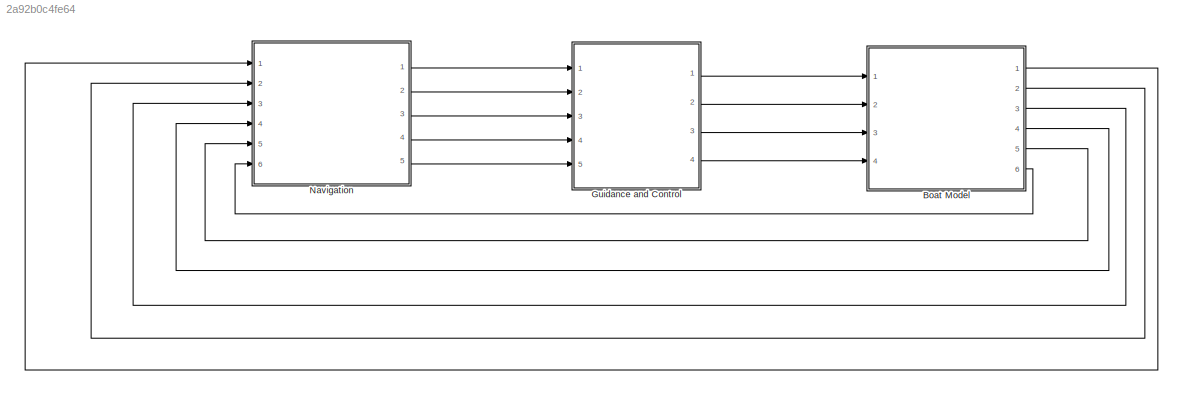
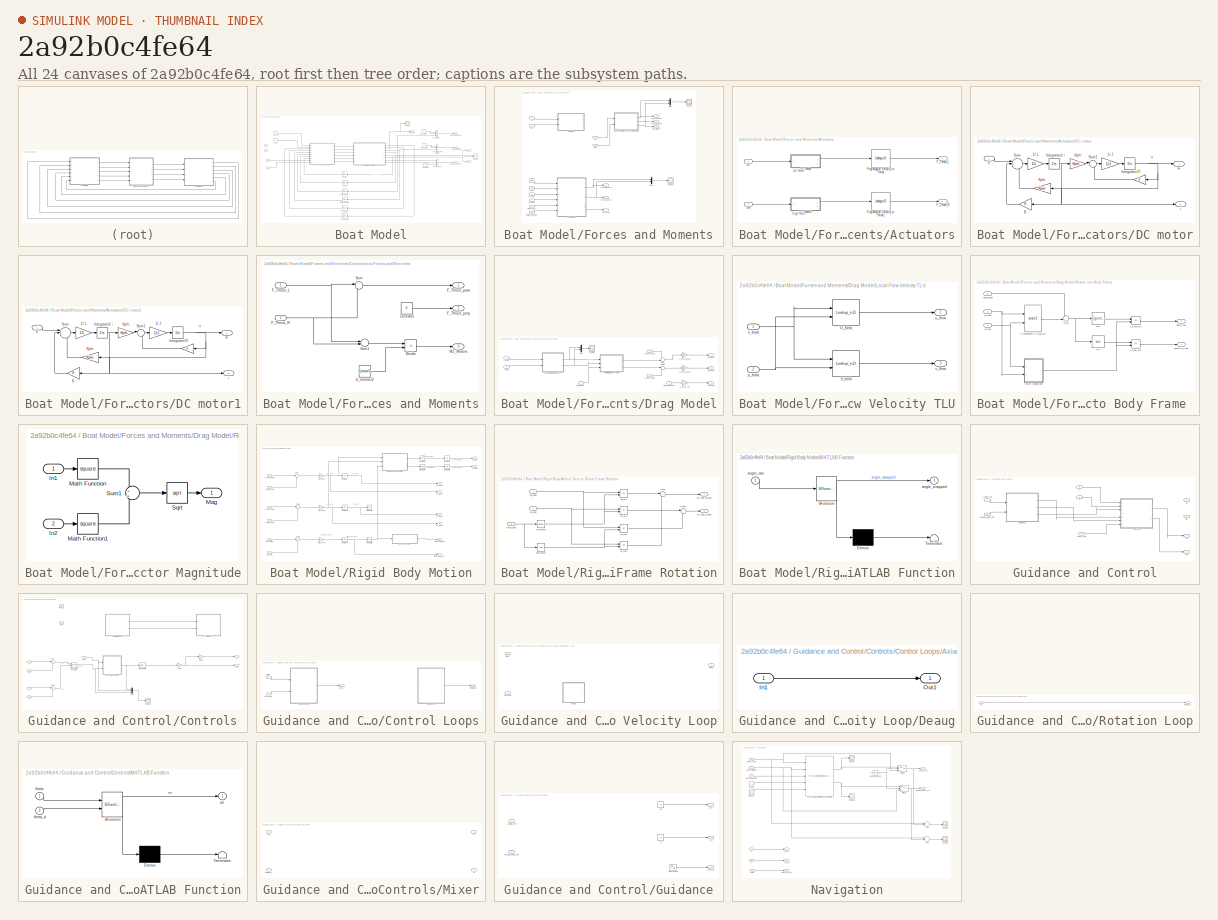
[diagram: thumbnail index - all 24 canvases of the model, root first then tree order]
MODEL slx_2a92b0c4fe64
KIND model
CONFIG AbsTol = auto
CONFIG FixedStep = auto
CONFIG MaxStep = auto
CONFIG MinStep = auto
CONFIG RelTol = 1e-3
CONFIG SampleTimeConstraint = Unconstrained
CONFIG Solver = ode45
CONFIG SolverMode = Auto
CONFIG SolverName = ode45
CONFIG StartTime = 0.0
CONFIG StopTime = 50
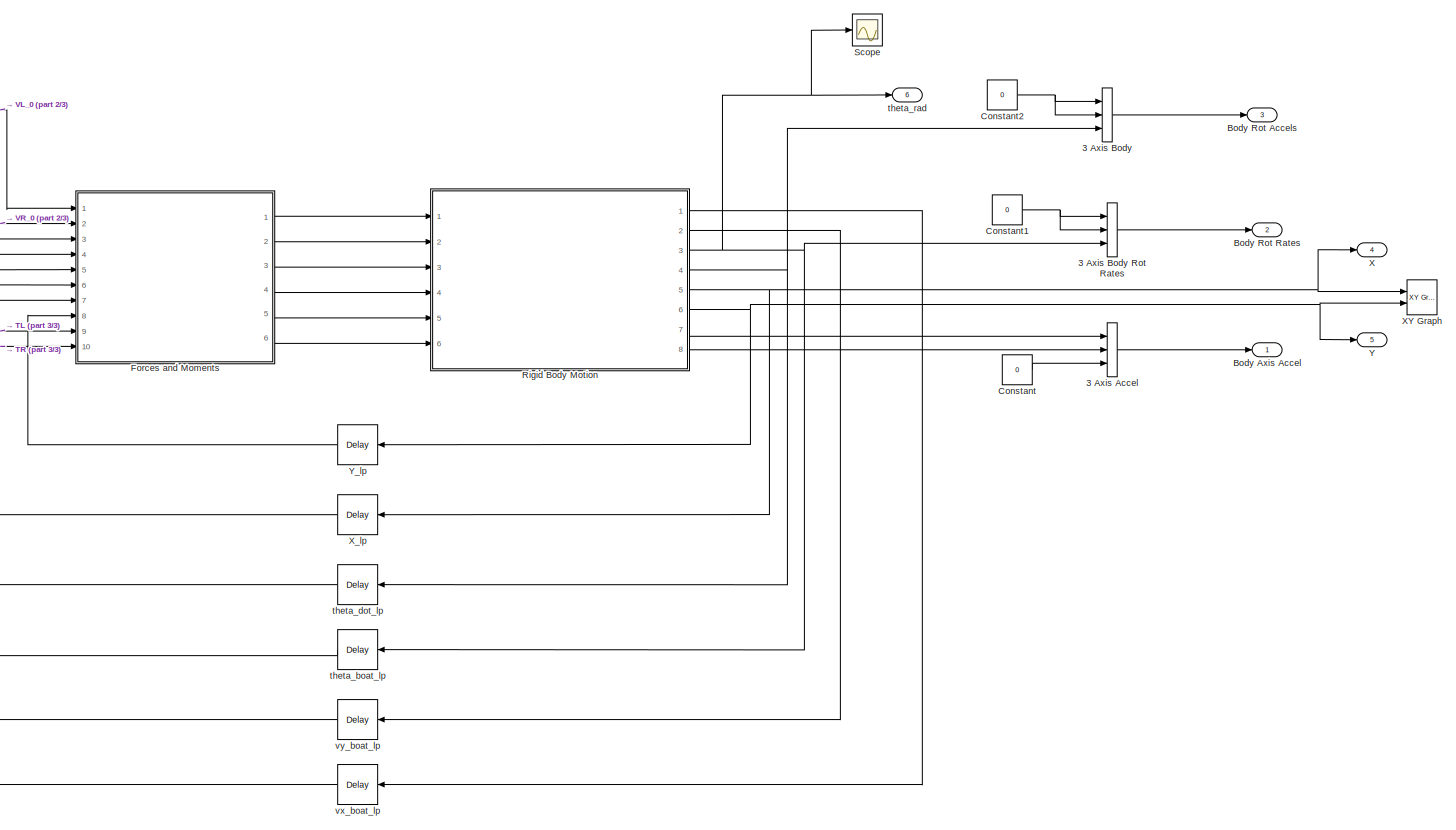
[diagram: Boat Model - part 1/3, most of the canvas]
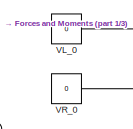
[diagram: Boat Model - part 2/3, top left region]
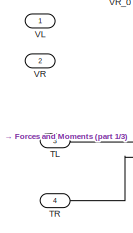
[diagram: Boat Model - part 3/3, middle left region]
BLOCK [SubSystem] Boat Model
  Ports = [4, 6]
  RequestExecContextInheritance = off
BLOCK [Concatenate] Boat Model/3 Axis Accel
  NumInputs = 3
  Ports = [3, 1]
BLOCK [Concatenate] Boat Model/3 Axis Body
  NumInputs = 3
  Ports = [3, 1]
BLOCK [Concatenate] Boat Model/3 Axis Body Rot Rates
  NumInputs = 3
  Ports = [3, 1]
BLOCK [Outport] Boat Model/Body Axis Accel
  IconDisplay = Port number
BLOCK [Outport] Boat Model/Body Rot Accels
  IconDisplay = Port number
  Port = 3
BLOCK [Outport] Boat Model/Body Rot Rates
  IconDisplay = Port number
  Port = 2
BLOCK [Constant] Boat Model/Constant
  Value = 0
BLOCK [Constant] Boat Model/Constant1
  Value = 0
BLOCK [Constant] Boat Model/Constant2
  Value = 0
BLOCK [SubSystem] Boat Model/Forces and Moments
  Ports = [10, 6]
  RequestExecContextInheritance = off
BLOCK [SubSystem] Boat Model/Forces and Moments/Actuators
  Ports = [2, 2]
  RequestExecContextInheritance = off
BLOCK [SubSystem] Boat Model/Forces and Moments/Actuators/DC motor
  Ports = [1, 2]
  RequestExecContextInheritance = off
BLOCK [Gain] Boat Model/Forces and Moments/Actuators/DC motor/1// J
  Gain = 1/J
  OutDataTypeStr = Inherit: Inherit via internal rule
  ParamDataTypeStr = Inherit: Inherit via internal rule
  SaturateOnIntegerOverflow = off
BLOCK [Gain] Boat Model/Forces and Moments/Actuators/DC motor/1// L
  Gain = 1/L
  OutDataTypeStr = Inherit: Inherit via internal rule
  ParamDataTypeStr = Inherit: Inherit via internal rule
  SaturateOnIntegerOverflow = off
BLOCK [Integrator] Boat Model/Forces and Moments/Actuators/DC motor/Integrator1
  Ports = [1, 1]
BLOCK [Integrator] Boat Model/Forces and Moments/Actuators/DC motor/Integrator2
  Ports = [1, 1]
BLOCK [Gain] Boat Model/Forces and Moments/Actuators/DC motor/Kphi
  Gain = Kphi
  OutDataTypeStr = Inherit: Inherit via internal rule
  ParamDataTypeStr = Inherit: Inherit via internal rule
  SaturateOnIntegerOverflow = off
BLOCK [Gain] Boat Model/Forces and Moments/Actuators/DC motor/Kphi 
  Gain = Kphi
  OutDataTypeStr = Inherit: Inherit via internal rule
  ParamDataTypeStr = Inherit: Inherit via internal rule
  SaturateOnIntegerOverflow = off
BLOCK [Gain] Boat Model/Forces and Moments/Actuators/DC motor/R
  Gain = R
  OutDataTypeStr = Inherit: Inherit via internal rule
  ParamDataTypeStr = Inherit: Inherit via internal rule
  SaturateOnIntegerOverflow = off
BLOCK [Sum] Boat Model/Forces and Moments/Actuators/DC motor/Sum
  IconShape = round
  InputSameDT = off
  Inputs = |+--
  OutDataTypeStr = Inherit: Inherit via internal rule
  Ports = [3, 1]
  SaturateOnIntegerOverflow = off
BLOCK [Sum] Boat Model/Forces and Moments/Actuators/DC motor/Sum1
  IconShape = round
  InputSameDT = off
  Inputs = |+-
  OutDataTypeStr = Inherit: Inherit via internal rule
  Ports = [2, 1]
  SaturateOnIntegerOverflow = off
BLOCK [Inport] Boat Model/Forces and Moments/Actuators/DC motor/V
  IconDisplay = Port number
BLOCK [Gain] Boat Model/Forces and Moments/Actuators/DC motor/b
  Gain = b
  OutDataTypeStr = Inherit: Inherit via internal rule
  ParamDataTypeStr = Inherit: Inherit via internal rule
  SaturateOnIntegerOverflow = off
BLOCK [Outport] Boat Model/Forces and Moments/Actuators/DC motor/i
  IconDisplay = Port number
  Port = 2
BLOCK [Outport] Boat Model/Forces and Moments/Actuators/DC motor/w
  IconDisplay = Port number
BLOCK [SubSystem] Boat Model/Forces and Moments/Actuators/DC motor1
  Ports = [1, 2]
  RequestExecContextInheritance = off
BLOCK [Gain] Boat Model/Forces and Moments/Actuators/DC motor1/1// J
  Gain = 1/J
  OutDataTypeStr = Inherit: Inherit via internal rule
  ParamDataTypeStr = Inherit: Inherit via internal rule
  SaturateOnIntegerOverflow = off
BLOCK [Gain] Boat Model/Forces and Moments/Actuators/DC motor1/1// L
  Gain = 1/L
  OutDataTypeStr = Inherit: Inherit via internal rule
  ParamDataTypeStr = Inherit: Inherit via internal rule
  SaturateOnIntegerOverflow = off
BLOCK [Integrator] Boat Model/Forces and Moments/Actuators/DC motor1/Integrator1
  Ports = [1, 1]
BLOCK [Integrator] Boat Model/Forces and Moments/Actuators/DC motor1/Integrator2
  Ports = [1, 1]
BLOCK [Gain] Boat Model/Forces and Moments/Actuators/DC motor1/Kphi
  Gain = Kphi
  OutDataTypeStr = Inherit: Inherit via internal rule
  ParamDataTypeStr = Inherit: Inherit via internal rule
  SaturateOnIntegerOverflow = off
BLOCK [Gain] Boat Model/Forces and Moments/Actuators/DC motor1/Kphi 
  Gain = Kphi
  OutDataTypeStr = Inherit: Inherit via internal rule
  ParamDataTypeStr = Inherit: Inherit via internal rule
  SaturateOnIntegerOverflow = off
BLOCK [Gain] Boat Model/Forces and Moments/Actuators/DC motor1/R
  Gain = R
  OutDataTypeStr = Inherit: Inherit via internal rule
  ParamDataTypeStr = Inherit: Inherit via internal rule
  SaturateOnIntegerOverflow = off
BLOCK [Sum] Boat Model/Forces and Moments/Actuators/DC motor1/Sum
  IconShape = round
  InputSameDT = off
  Inputs = |+--
  OutDataTypeStr = Inherit: Inherit via internal rule
  Ports = [3, 1]
  SaturateOnIntegerOverflow = off
BLOCK [Sum] Boat Model/Forces and Moments/Actuators/DC motor1/Sum1
  IconShape = round
  InputSameDT = off
  Inputs = |+-
  OutDataTypeStr = Inherit: Inherit via internal rule
  Ports = [2, 1]
  SaturateOnIntegerOverflow = off
BLOCK [Inport] Boat Model/Forces and Moments/Actuators/DC motor1/V
  IconDisplay = Port number
BLOCK [Gain] Boat Model/Forces and Moments/Actuators/DC motor1/b
  Gain = b
  OutDataTypeStr = Inherit: Inherit via internal rule
  ParamDataTypeStr = Inherit: Inherit via internal rule
  SaturateOnIntegerOverflow = off
BLOCK [Outport] Boat Model/Forces and Moments/Actuators/DC motor1/i
  IconDisplay = Port number
  Port = 2
BLOCK [Outport] Boat Model/Forces and Moments/Actuators/DC motor1/w
  IconDisplay = Port number
BLOCK [Outport] Boat Model/Forces and Moments/Actuators/F_Thrust_L
  IconDisplay = Port number
BLOCK [Outport] Boat Model/Forces and Moments/Actuators/F_Thrust_R
  IconDisplay = Port number
  Port = 2
BLOCK [Lookup_n-D] Boat Model/Forces and Moments/Actuators/Prop Angular Velocity to Thrust
  BreakpointsForDimension1 = [-5:5]
  InternalRulePriority = Speed
  NumberOfTableDimensions = 1
  Ports = [1, 1]
  RndMeth = Simplest
  Table = tanh([-5:5])
BLOCK [Lookup_n-D] Boat Model/Forces and Moments/Actuators/Prop Angular Velocity to Thrust1
  BreakpointsForDimension1 = [-5:5]
  InternalRulePriority = Speed
  NumberOfTableDimensions = 1
  Ports = [1, 1]
  RndMeth = Simplest
  Table = tanh([-5:5])
BLOCK [Inport] Boat Model/Forces and Moments/Actuators/VL
  IconDisplay = Port number
BLOCK [Inport] Boat Model/Forces and Moments/Actuators/VR
  IconDisplay = Port number
  Port = 2
BLOCK [SubSystem] Boat Model/Forces and Moments/Conversion to Forces and Moments
  Ports = [2, 3]
  RequestExecContextInheritance = off
BLOCK [Constant] Boat Model/Forces and Moments/Conversion to Forces and Moments/Constant
  Value = 0
BLOCK [Product] Boat Model/Forces and Moments/Conversion to Forces and Moments/Divide
  InputSameDT = off
  Inputs = */
  OutDataTypeStr = Inherit: Inherit via internal rule
  Ports = [2, 1]
  RndMeth = Floor
  SaturateOnIntegerOverflow = off
BLOCK [Inport] Boat Model/Forces and Moments/Conversion to Forces and Moments/F_Thrust_L
  IconDisplay = Port number
BLOCK [Inport] Boat Model/Forces and Moments/Conversion to Forces and Moments/F_Thrust_R
  IconDisplay = Port number
  Port = 2
BLOCK [Outport] Boat Model/Forces and Moments/Conversion to Forces and Moments/F_Thrust_para
  IconDisplay = Port number
BLOCK [Outport] Boat Model/Forces and Moments/Conversion to Forces and Moments/F_Thrust_perp
  IconDisplay = Port number
  Port = 2
BLOCK [Outport] Boat Model/Forces and Moments/Conversion to Forces and Moments/Mz_Motors
  IconDisplay = Port number
  Port = 3
BLOCK [Sum] Boat Model/Forces and Moments/Conversion to Forces and Moments/Sum
  IconShape = round
  InputSameDT = off
  Inputs = |++
  OutDataTypeStr = Inherit: Inherit via internal rule
  Ports = [2, 1]
  SaturateOnIntegerOverflow = off
BLOCK [Sum] Boat Model/Forces and Moments/Conversion to Forces and Moments/Sum1
  IconShape = round
  InputSameDT = off
  Inputs = +-|
  OutDataTypeStr = Inherit: Inherit via internal rule
  Ports = [2, 1]
  SaturateOnIntegerOverflow = off
BLOCK [Constant] Boat Model/Forces and Moments/Conversion to Forces and Moments/d_motors//2
  Value = d_motors/2
BLOCK [SubSystem] Boat Model/Forces and Moments/Drag Model
  Ports = [6, 3]
  RequestExecContextInheritance = off
BLOCK [Outport] Boat Model/Forces and Moments/Drag Model/Fd_para
  IconDisplay = Port number
BLOCK [Outport] Boat Model/Forces and Moments/Drag Model/Fd_perp
  IconDisplay = Port number
  Port = 2
BLOCK [SubSystem] Boat Model/Forces and Moments/Drag Model/Local Flow Velocity TLU
  Ports = [2, 2]
  RequestExecContextInheritance = off
BLOCK [Lookup_n-D] Boat Model/Forces and Moments/Drag Model/Local Flow Velocity TLU/U_field
  BeginIndexSearchUsingPreviousIndexResult = on
  BreakpointsForDimension1 = xs
  BreakpointsForDimension2 = ys
  ExtrapMethod = Clip
  InternalRulePriority = Speed
  Ports = [2, 1]
  RndMeth = Simplest
  Table = U_field'
  UseLastTableValue = on
BLOCK [Lookup_n-D] Boat Model/Forces and Moments/Drag Model/Local Flow Velocity TLU/V_field
  BeginIndexSearchUsingPreviousIndexResult = on
  BreakpointsForDimension1 = xs
  BreakpointsForDimension2 = ys
  ExtrapMethod = Clip
  InternalRulePriority = Speed
  Ports = [2, 1]
  RndMeth = Simplest
  Table = V_field_load'
  UseLastTableValue = on
BLOCK [Outport] Boat Model/Forces and Moments/Drag Model/Local Flow Velocity TLU/u_flow
  IconDisplay = Port number
BLOCK [Outport] Boat Model/Forces and Moments/Drag Model/Local Flow Velocity TLU/v_flow
  IconDisplay = Port number
  Port = 2
BLOCK [Inport] Boat Model/Forces and Moments/Drag Model/Local Flow Velocity TLU/x_boat
  IconDisplay = Port number
BLOCK [Inport] Boat Model/Forces and Moments/Drag Model/Local Flow Velocity TLU/y_boat
  IconDisplay = Port number
  Port = 2
BLOCK [Mux] Boat Model/Forces and Moments/Drag Model/Mux
  DisplayOption = bar
  Inputs = 2
  Ports = [2, 1]
BLOCK [Outport] Boat Model/Forces and Moments/Drag Model/Mz_drag
  IconDisplay = Port number
  Port = 3
BLOCK [SubSystem] Boat Model/Forces and Moments/Drag Model/Rotate into Body Frame 
  Ports = [3, 2]
  RequestExecContextInheritance = off
BLOCK [Sum] Boat Model/Forces and Moments/Drag Model/Rotate into Body Frame /Sum
  IconShape = round
  InputSameDT = off
  Inputs = -+|
  OutDataTypeStr = Inherit: Inherit via internal rule
  Ports = [2, 1]
  SaturateOnIntegerOverflow = off
BLOCK [Trigonometry] Boat Model/Forces and Moments/Drag Model/Rotate into Body Frame /Trigonometric Function
  Operator = atan2
  Ports = [2, 1]
BLOCK [SubSystem] Boat Model/Forces and Moments/Drag Model/Rotate into Body Frame /Vector Magnitude
  Ports = [2, 1]
  RequestExecContextInheritance = off
BLOCK [Inport] Boat Model/Forces and Moments/Drag Model/Rotate into Body Frame /Vector Magnitude/In1
  IconDisplay = Port number
BLOCK [Inport] Boat Model/Forces and Moments/Drag Model/Rotate into Body Frame /Vector Magnitude/In2
  IconDisplay = Port number
  Port = 2
BLOCK [Outport] Boat Model/Forces and Moments/Drag Model/Rotate into Body Frame /Vector Magnitude/Mag
  IconDisplay = Port number
BLOCK [Math] Boat Model/Forces and Moments/Drag Model/Rotate into Body Frame /Vector Magnitude/Math Function
  Operator = square
  Ports = [1, 1]
BLOCK [Math] Boat Model/Forces and Moments/Drag Model/Rotate into Body Frame /Vector Magnitude/Math Function1
  Operator = square
  Ports = [1, 1]
BLOCK [Sqrt] Boat Model/Forces and Moments/Drag Model/Rotate into Body Frame /Vector Magnitude/Sqrt
BLOCK [Sum] Boat Model/Forces and Moments/Drag Model/Rotate into Body Frame /Vector Magnitude/Sum1
  IconShape = round
  InputSameDT = off
  OutDataTypeStr = Inherit: Inherit via internal rule
  Ports = [2, 1]
  SaturateOnIntegerOverflow = off
BLOCK [Trigonometry] Boat Model/Forces and Moments/Drag Model/Rotate into Body Frame /cos 
  Ports = [1, 1]
BLOCK [Outport] Boat Model/Forces and Moments/Drag Model/Rotate into Body Frame /parallel_flow
  IconDisplay = Port number
BLOCK [Outport] Boat Model/Forces and Moments/Drag Model/Rotate into Body Frame /perp_flow
  IconDisplay = Port number
  Port = 2
BLOCK [Trigonometry] Boat Model/Forces and Moments/Drag Model/Rotate into Body Frame /sin
  Operator = cos
  Ports = [1, 1]
BLOCK [Inport] Boat Model/Forces and Moments/Drag Model/Rotate into Body Frame /theta_boat
  IconDisplay = Port number
  Port = 3
BLOCK [Inport] Boat Model/Forces and Moments/Drag Model/Rotate into Body Frame /u_flow
  IconDisplay = Port number
BLOCK [Inport] Boat Model/Forces and Moments/Drag Model/Rotate into Body Frame /v_flow
  IconDisplay = Port number
  Port = 2
BLOCK [Product] Boat Model/Forces and Moments/Drag Model/Rotate into Body Frame /v_flow_cos
  InputSameDT = off
  Inputs = **
  OutDataTypeStr = Inherit: Inherit via internal rule
  Ports = [2, 1]
  RndMeth = Floor
  SaturateOnIntegerOverflow = off
BLOCK [Product] Boat Model/Forces and Moments/Drag Model/Rotate into Body Frame /v_flow_sin
  InputSameDT = off
  Inputs = **
  OutDataTypeStr = Inherit: Inherit via internal rule
  Ports = [2, 1]
  RndMeth = Floor
  SaturateOnIntegerOverflow = off
BLOCK [Scope] Boat Model/Forces and Moments/Drag Model/Scope
  Floating = off
  NumInputPorts = 1
  Ports = [1]
  SaveName = ScopeData7
BLOCK [Sum] Boat Model/Forces and Moments/Drag Model/Sum
  IconShape = round
  InputSameDT = off
  Inputs = +-|
  OutDataTypeStr = Inherit: Inherit via internal rule
  Ports = [2, 1]
  SaturateOnIntegerOverflow = off
BLOCK [Sum] Boat Model/Forces and Moments/Drag Model/Sum1
  IconShape = round
  InputSameDT = off
  Inputs = |-+
  OutDataTypeStr = Inherit: Inherit via internal rule
  Ports = [2, 1]
  SaturateOnIntegerOverflow = off
BLOCK [Gain] Boat Model/Forces and Moments/Drag Model/k_drag_para
  Gain = k_drag_para
  OutDataTypeStr = Inherit: Inherit via internal rule
  ParamDataTypeStr = Inherit: Inherit via internal rule
  SaturateOnIntegerOverflow = off
BLOCK [Gain] Boat Model/Forces and Moments/Drag Model/k_drag_perp
  Gain = k_drag_perp
  OutDataTypeStr = Inherit: Inherit via internal rule
  ParamDataTypeStr = Inherit: Inherit via internal rule
  SaturateOnIntegerOverflow = off
BLOCK [Gain] Boat Model/Forces and Moments/Drag Model/k_drag_rot
  Gain = 1*k_drag_rot
  OutDataTypeStr = Inherit: Inherit via internal rule
  ParamDataTypeStr = Inherit: Inherit via internal rule
  SaturateOnIntegerOverflow = off
BLOCK [Inport] Boat Model/Forces and Moments/Drag Model/theta_boat
  IconDisplay = Port number
  Port = 5
BLOCK [Inport] Boat Model/Forces and Moments/Drag Model/theta_dot_boat
  IconDisplay = Port number
  Port = 6
BLOCK [Inport] Boat Model/Forces and Moments/Drag Model/v_para_boat
  IconDisplay = Port number
  Port = 3
BLOCK [Inport] Boat Model/Forces and Moments/Drag Model/v_perp_boat
  IconDisplay = Port number
  Port = 4
BLOCK [Inport] Boat Model/Forces and Moments/Drag Model/x_boat
  IconDisplay = Port number
BLOCK [Inport] Boat Model/Forces and Moments/Drag Model/y_boat
  IconDisplay = Port number
  Port = 2
BLOCK [Outport] Boat Model/Forces and Moments/F_drag_para
  IconDisplay = Port number
  Port = 4
BLOCK [Outport] Boat Model/Forces and Moments/F_drag_perp
  IconDisplay = Port number
  Port = 5
BLOCK [Outport] Boat Model/Forces and Moments/F_thrust_para
  IconDisplay = Port number
BLOCK [Outport] Boat Model/Forces and Moments/F_thrust_perp
  IconDisplay = Port number
  Port = 2
BLOCK [Mux] Boat Model/Forces and Moments/Mux
  DisplayOption = bar
  Inputs = 2
  Ports = [2, 1]
BLOCK [Mux] Boat Model/Forces and Moments/Mux1
  DisplayOption = bar
  Inputs = 2
  Ports = [2, 1]
BLOCK [Outport] Boat Model/Forces and Moments/Mz_drag
  IconDisplay = Port number
  Port = 6
BLOCK [Outport] Boat Model/Forces and Moments/Mz_motors
  IconDisplay = Port number
  Port = 3
BLOCK [Scope] Boat Model/Forces and Moments/Scope
  Floating = off
  NumInputPorts = 1
  Ports = [1]
  SaveName = ScopeData4
BLOCK [Scope] Boat Model/Forces and Moments/Scope1
  Floating = off
  NumInputPorts = 1
  Ports = [1]
  SaveName = ScopeData6
BLOCK [Inport] Boat Model/Forces and Moments/TL
  IconDisplay = Port number
  Port = 9
BLOCK [Inport] Boat Model/Forces and Moments/TR
  IconDisplay = Port number
  Port = 10
BLOCK [Inport] Boat Model/Forces and Moments/VL
  IconDisplay = Port number
BLOCK [Inport] Boat Model/Forces and Moments/VR
  IconDisplay = Port number
  Port = 2
BLOCK [Inport] Boat Model/Forces and Moments/X_boat
  IconDisplay = Port number
  Port = 7
BLOCK [Inport] Boat Model/Forces and Moments/Y_boat
  IconDisplay = Port number
  Port = 8
BLOCK [Inport] Boat Model/Forces and Moments/theta_boat
  IconDisplay = Port number
  Port = 5
BLOCK [Inport] Boat Model/Forces and Moments/theta_dot_boat
  IconDisplay = Port number
  Port = 6
BLOCK [Inport] Boat Model/Forces and Moments/vx_boat
  IconDisplay = Port number
  Port = 3
BLOCK [Inport] Boat Model/Forces and Moments/vy_boat
  IconDisplay = Port number
  Port = 4
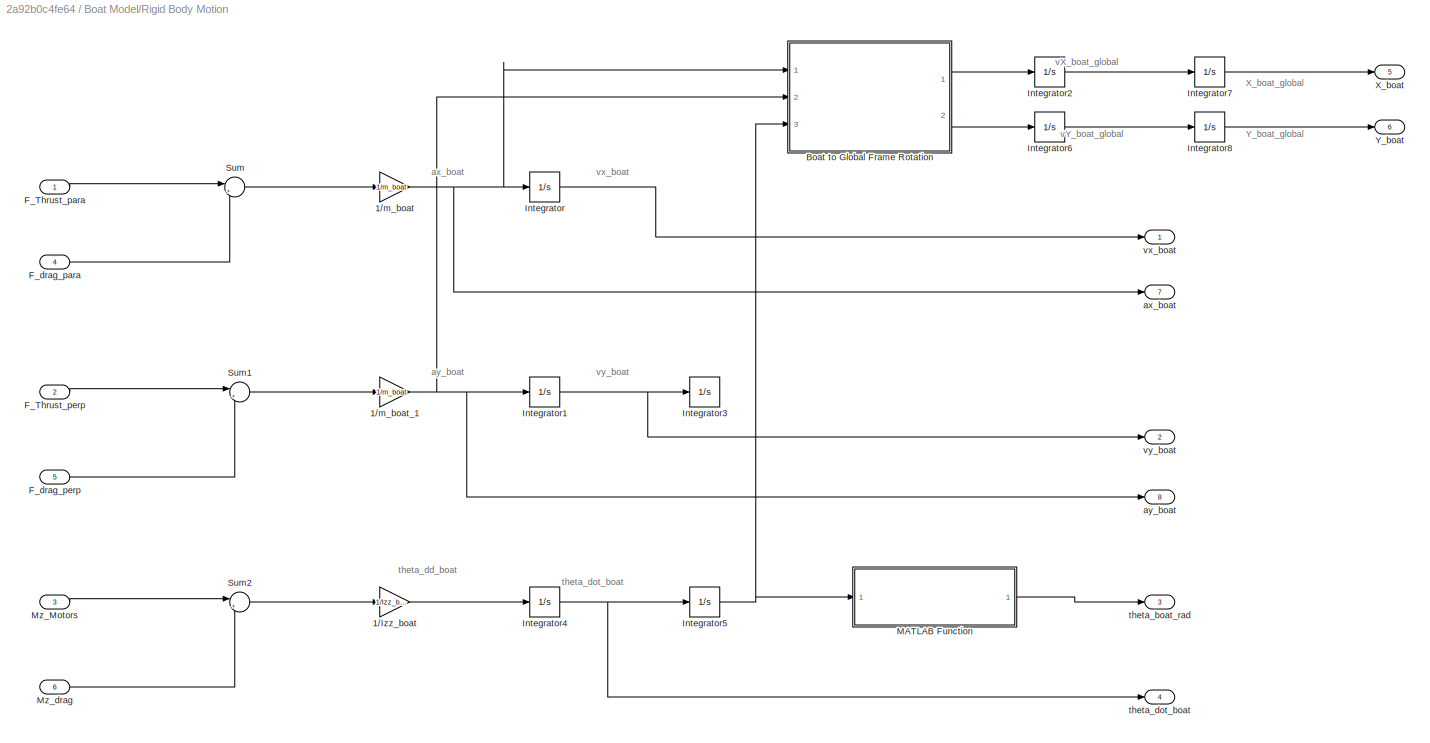
BLOCK [SubSystem] Boat Model/Rigid Body Motion
  Ports = [6, 8]
  RequestExecContextInheritance = off
BLOCK [SubSystem] Boat Model/Rigid Body Motion/ Boat to Global Frame Rotation
  Ports = [3, 2]
  RequestExecContextInheritance = off
BLOCK [Sum] Boat Model/Rigid Body Motion/ Boat to Global Frame Rotation/Sum
  IconShape = round
  InputSameDT = off
  Inputs = |++
  OutDataTypeStr = Inherit: Inherit via internal rule
  Ports = [2, 1]
  SaturateOnIntegerOverflow = off
BLOCK [Sum] Boat Model/Rigid Body Motion/ Boat to Global Frame Rotation/Sum1
  IconShape = round
  InputSameDT = off
  Inputs = |-+
  OutDataTypeStr = Inherit: Inherit via internal rule
  Ports = [2, 1]
  SaturateOnIntegerOverflow = off
BLOCK [Outport] Boat Model/Rigid Body Motion/ Boat to Global Frame Rotation/aX_boat_global
  IconDisplay = Port number
BLOCK [Outport] Boat Model/Rigid Body Motion/ Boat to Global Frame Rotation/aY_boat_global
  IconDisplay = Port number
  Port = 2
BLOCK [Inport] Boat Model/Rigid Body Motion/ Boat to Global Frame Rotation/ax_boat
  IconDisplay = Port number
BLOCK [Product] Boat Model/Rigid Body Motion/ Boat to Global Frame Rotation/ax_cos
  InputSameDT = off
  OutDataTypeStr = Inherit: Inherit via internal rule
  Ports = [2, 1]
  RndMeth = Floor
  SaturateOnIntegerOverflow = off
BLOCK [Product] Boat Model/Rigid Body Motion/ Boat to Global Frame Rotation/ax_sin
  InputSameDT = off
  OutDataTypeStr = Inherit: Inherit via internal rule
  Ports = [2, 1]
  RndMeth = Floor
  SaturateOnIntegerOverflow = off
BLOCK [Inport] Boat Model/Rigid Body Motion/ Boat to Global Frame Rotation/ay_boat
  IconDisplay = Port number
  Port = 2
BLOCK [Product] Boat Model/Rigid Body Motion/ Boat to Global Frame Rotation/ay_cos
  InputSameDT = off
  OutDataTypeStr = Inherit: Inherit via internal rule
  Ports = [2, 1]
  RndMeth = Floor
  SaturateOnIntegerOverflow = off
BLOCK [Product] Boat Model/Rigid Body Motion/ Boat to Global Frame Rotation/ay_sin
  InputSameDT = off
  OutDataTypeStr = Inherit: Inherit via internal rule
  Ports = [2, 1]
  RndMeth = Floor
  SaturateOnIntegerOverflow = off
BLOCK [Trigonometry] Boat Model/Rigid Body Motion/ Boat to Global Frame Rotation/cos(theta)
  ApproximationMethod = CORDIC
  Operator = cos
  Ports = [1, 1]
BLOCK [Trigonometry] Boat Model/Rigid Body Motion/ Boat to Global Frame Rotation/sin(theta)
  ApproximationMethod = CORDIC
  Ports = [1, 1]
BLOCK [Inport] Boat Model/Rigid Body Motion/ Boat to Global Frame Rotation/theta_boat
  IconDisplay = Port number
  Port = 3
BLOCK [Gain] Boat Model/Rigid Body Motion/1//Izz_boat
  Gain = 1/Izz_boat
  OutDataTypeStr = Inherit: Inherit via internal rule
  ParamDataTypeStr = Inherit: Inherit via internal rule
  SaturateOnIntegerOverflow = off
BLOCK [Gain] Boat Model/Rigid Body Motion/1//m_boat
  Gain = 1/m_boat
  OutDataTypeStr = Inherit: Inherit via internal rule
  ParamDataTypeStr = Inherit: Inherit via internal rule
  SaturateOnIntegerOverflow = off
BLOCK [Gain] Boat Model/Rigid Body Motion/1//m_boat_1
  Gain = 1/m_boat
  OutDataTypeStr = Inherit: Inherit via internal rule
  ParamDataTypeStr = Inherit: Inherit via internal rule
  SaturateOnIntegerOverflow = off
BLOCK [Inport] Boat Model/Rigid Body Motion/F_Thrust_para
  IconDisplay = Port number
BLOCK [Inport] Boat Model/Rigid Body Motion/F_Thrust_perp
  IconDisplay = Port number
  Port = 2
BLOCK [Inport] Boat Model/Rigid Body Motion/F_drag_para
  IconDisplay = Port number
  Port = 4
BLOCK [Inport] Boat Model/Rigid Body Motion/F_drag_perp
  IconDisplay = Port number
  Port = 5
BLOCK [Integrator] Boat Model/Rigid Body Motion/Integrator
  Ports = [1, 1]
BLOCK [Integrator] Boat Model/Rigid Body Motion/Integrator1
  Ports = [1, 1]
BLOCK [Integrator] Boat Model/Rigid Body Motion/Integrator2
  InitialCondition = v0_boat(1)
  Ports = [1, 1]
BLOCK [Integrator] Boat Model/Rigid Body Motion/Integrator3
  Ports = [1, 1]
BLOCK [Integrator] Boat Model/Rigid Body Motion/Integrator4
  InitialCondition = theta_dot0_boat
  Ports = [1, 1]
BLOCK [Integrator] Boat Model/Rigid Body Motion/Integrator5
  InitialCondition = theta0_boat
  Ports = [1, 1]
BLOCK [Integrator] Boat Model/Rigid Body Motion/Integrator6
  InitialCondition = v0_boat(2)
  Ports = [1, 1]
BLOCK [Integrator] Boat Model/Rigid Body Motion/Integrator7
  InitialCondition = x0_boat(1)
  LimitOutput = on
  LowerSaturationLimit = 0
  Ports = [1, 1]
  UpperSaturationLimit = 2
BLOCK [Integrator] Boat Model/Rigid Body Motion/Integrator8
  InitialCondition = x0_boat(2)
  LimitOutput = on
  LowerSaturationLimit = 0
  Ports = [1, 1]
  UpperSaturationLimit = 1
BLOCK [SubSystem] Boat Model/Rigid Body Motion/MATLAB Function
  ErrorFcn = Stateflow.Translate.translate
  PermitHierarchicalResolution = ExplicitOnly
  Ports = [1, 1]
  RequestExecContextInheritance = off
  SFBlockType = MATLAB Function
  TreatAsAtomicUnit = on
BLOCK [Demux] Boat Model/Rigid Body Motion/MATLAB Function/ Demux 
  Outputs = 1
  Ports = [1, 1]
BLOCK [S-Function] Boat Model/Rigid Body Motion/MATLAB Function/ SFunction 
  EnableBusSupport = on
  FunctionName = sf_sfun
  PortCounts = [1 2]
  Ports = [1, 2]
  Tag = Stateflow S-Function Boat_Simulation 1
BLOCK [Terminator] Boat Model/Rigid Body Motion/MATLAB Function/ Terminator 
BLOCK [Inport] Boat Model/Rigid Body Motion/MATLAB Function/angle_rad
  IconDisplay = Port number
BLOCK [Outport] Boat Model/Rigid Body Motion/MATLAB Function/angle_wrapped
  IconDisplay = Port number
BLOCK [Inport] Boat Model/Rigid Body Motion/Mz_Motors
  IconDisplay = Port number
  Port = 3
BLOCK [Inport] Boat Model/Rigid Body Motion/Mz_drag
  IconDisplay = Port number
  Port = 6
BLOCK [Sum] Boat Model/Rigid Body Motion/Sum
  IconShape = round
  InputSameDT = off
  Inputs = |+-
  OutDataTypeStr = Inherit: Inherit via internal rule
  Ports = [2, 1]
  SaturateOnIntegerOverflow = off
BLOCK [Sum] Boat Model/Rigid Body Motion/Sum1
  IconShape = round
  InputSameDT = off
  Inputs = |+-
  OutDataTypeStr = Inherit: Inherit via internal rule
  Ports = [2, 1]
  SaturateOnIntegerOverflow = off
BLOCK [Sum] Boat Model/Rigid Body Motion/Sum2
  IconShape = round
  InputSameDT = off
  Inputs = |+-
  OutDataTypeStr = Inherit: Inherit via internal rule
  Ports = [2, 1]
  SaturateOnIntegerOverflow = off
BLOCK [Outport] Boat Model/Rigid Body Motion/X_boat
  IconDisplay = Port number
  Port = 5
BLOCK [Outport] Boat Model/Rigid Body Motion/Y_boat
  IconDisplay = Port number
  Port = 6
BLOCK [Outport] Boat Model/Rigid Body Motion/ax_boat
  IconDisplay = Port number
  Port = 7
BLOCK [Outport] Boat Model/Rigid Body Motion/ay_boat
  IconDisplay = Port number
  Port = 8
BLOCK [Outport] Boat Model/Rigid Body Motion/theta_boat_rad
  IconDisplay = Port number
  Port = 3
BLOCK [Outport] Boat Model/Rigid Body Motion/theta_dot_boat
  IconDisplay = Port number
  Port = 4
BLOCK [Outport] Boat Model/Rigid Body Motion/vx_boat
  IconDisplay = Port number
BLOCK [Outport] Boat Model/Rigid Body Motion/vy_boat
  IconDisplay = Port number
  Port = 2
BLOCK [Scope] Boat Model/Scope
  Floating = off
  NumInputPorts = 1
  Ports = [1]
  SaveName = ScopeData5
BLOCK [Inport] Boat Model/TL
  IconDisplay = Port number
  Port = 3
BLOCK [Inport] Boat Model/TR
  IconDisplay = Port number
  Port = 4
BLOCK [Inport] Boat Model/VL
  IconDisplay = Port number
BLOCK [Constant] Boat Model/VL_0
  Value = 0
BLOCK [Inport] Boat Model/VR
  IconDisplay = Port number
  Port = 2
BLOCK [Constant] Boat Model/VR_0
  Value = 0
BLOCK [Outport] Boat Model/X
  IconDisplay = Port number
  Port = 4
BLOCK [Reference] Boat Model/XY Graph  REF=simulink/Sinks/XY Graph
  Ports = [2]
  SourceBlock = simulink/Sinks/XY Graph
  SourceType = XY scope.
  st = 0.01
  xmax = 2
  xmin = 0
  ymax = 1
  ymin = 0
BLOCK [Delay] Boat Model/X_lp
  DelayLength = 1
  InitialCondition = x0_boat(1)
  InputPortMap = u0
  Ports = [1, 1]
  SampleTime = 0.01
BLOCK [Outport] Boat Model/Y
  IconDisplay = Port number
  Port = 5
BLOCK [Delay] Boat Model/Y_lp
  DelayLength = 1
  InitialCondition = x0_boat(2)
  InputPortMap = u0
  Ports = [1, 1]
  SampleTime = 0.01
BLOCK [Delay] Boat Model/theta_boat_lp
  DelayLength = 1
  InitialCondition = theta0_boat
  InputPortMap = u0
  Ports = [1, 1]
  SampleTime = 0.01
BLOCK [Delay] Boat Model/theta_dot_lp
  DelayLength = 1
  InitialCondition = theta_dot0_boat
  InputPortMap = u0
  Ports = [1, 1]
  SampleTime = 0.01
BLOCK [Outport] Boat Model/theta_rad
  IconDisplay = Port number
  Port = 6
BLOCK [Delay] Boat Model/vx_boat_lp
  DelayLength = 1
  InitialCondition = v0_boat(1)
  InputPortMap = u0
  Ports = [1, 1]
  SampleTime = 0.01
BLOCK [Delay] Boat Model/vy_boat_lp
  DelayLength = 1
  InitialCondition = v0_boat(2)
  InputPortMap = u0
  Ports = [1, 1]
  SampleTime = 0.01
BLOCK [SubSystem] Guidance and Control
  Ports = [5, 4]
  RequestExecContextInheritance = off
BLOCK [Inport] Guidance and Control/A_body_est
  IconDisplay = Port number
BLOCK [SubSystem] Guidance and Control/Controls
  Ports = [7, 2]
  RequestExecContextInheritance = off
BLOCK [SubSystem] Guidance and Control/Controls/Control Loops
  Ports = [2, 2]
  RequestExecContextInheritance = off
BLOCK [SubSystem] Guidance and Control/Controls/Control Loops/Axial Velocity Loop
  Ports = [2, 1]
  RequestExecContextInheritance = off
BLOCK [SubSystem] Guidance and Control/Controls/Control Loops/Axial Velocity Loop/Deaug
  Ports = [1, 1]
  RequestExecContextInheritance = off
BLOCK [Inport] Guidance and Control/Controls/Control Loops/Axial Velocity Loop/Deaug/In1
  IconDisplay = Port number
BLOCK [Outport] Guidance and Control/Controls/Control Loops/Axial Velocity Loop/Deaug/Out1
  IconDisplay = Port number
BLOCK [Inport] Guidance and Control/Controls/Control Loops/Axial Velocity Loop/Vel Err
  IconDisplay = Port number
BLOCK [Inport] Guidance and Control/Controls/Control Loops/Axial Velocity Loop/vdot_body
  IconDisplay = Port number
  Port = 2
BLOCK [Outport] Guidance and Control/Controls/Control Loops/Axial Velocity Loop/vdot_c
  IconDisplay = Port number
BLOCK [SubSystem] Guidance and Control/Controls/Control Loops/Rotation Loop
  Ports = [1, 1]
  RequestExecContextInheritance = off
BLOCK [Inport] Guidance and Control/Controls/Control Loops/Rotation Loop/In1
  IconDisplay = Port number
BLOCK [Outport] Guidance and Control/Controls/Control Loops/Rotation Loop/thetadd_c
  IconDisplay = Port number
BLOCK [Inport] Guidance and Control/Controls/Control Loops/Vel Err
  IconDisplay = Port number
BLOCK [Outport] Guidance and Control/Controls/Control Loops/thetadd_c
  IconDisplay = Port number
  Port = 2
BLOCK [Inport] Guidance and Control/Controls/Control Loops/xdd_body
  IconDisplay = Port number
  Port = 2
BLOCK [Outport] Guidance and Control/Controls/Control Loops/xdd_c
  IconDisplay = Port number
BLOCK [Gain] Guidance and Control/Controls/Gain
  Gain = Izz_boat/(2*d_motors)
  OutDataTypeStr = Inherit: Inherit via internal rule
  ParamDataTypeStr = Inherit: Inherit via internal rule
  SaturateOnIntegerOverflow = off
BLOCK [Gain] Guidance and Control/Controls/Gain1
  Gain = -1
  OutDataTypeStr = Inherit: Inherit via internal rule
  ParamDataTypeStr = Inherit: Inherit via internal rule
  SaturateOnIntegerOverflow = off
BLOCK [SubSystem] Guidance and Control/Controls/MATLAB Function
  ErrorFcn = Stateflow.Translate.translate
  PermitHierarchicalResolution = ExplicitOnly
  Ports = [2, 1]
  RequestExecContextInheritance = off
  SFBlockType = MATLAB Function
  TreatAsAtomicUnit = on
BLOCK [Demux] Guidance and Control/Controls/MATLAB Function/ Demux 
  Outputs = 1
  Ports = [1, 1]
BLOCK [S-Function] Guidance and Control/Controls/MATLAB Function/ SFunction 
  EnableBusSupport = on
  FunctionName = sf_sfun
  PortCounts = [2 2]
  Ports = [2, 2]
  Tag = Stateflow S-Function Boat_Simulation 2
BLOCK [Terminator] Guidance and Control/Controls/MATLAB Function/ Terminator 
BLOCK [Outport] Guidance and Control/Controls/MATLAB Function/err
  IconDisplay = Port number
BLOCK [Inport] Guidance and Control/Controls/MATLAB Function/theta
  IconDisplay = Port number
BLOCK [Inport] Guidance and Control/Controls/MATLAB Function/theta_d
  IconDisplay = Port number
  Port = 2
BLOCK [SubSystem] Guidance and Control/Controls/Mixer
  Ports = [2, 2]
  RequestExecContextInheritance = off
BLOCK [Outport] Guidance and Control/Controls/Mixer/TL
  IconDisplay = Port number
  Port = 2
BLOCK [Outport] Guidance and Control/Controls/Mixer/TR
  IconDisplay = Port number
BLOCK [Inport] Guidance and Control/Controls/Mixer/thetadd_c
  IconDisplay = Port number
  Port = 2
BLOCK [Inport] Guidance and Control/Controls/Mixer/xdd_c
  IconDisplay = Port number
BLOCK [Mux] Guidance and Control/Controls/Mux
  DisplayOption = bar
  Inputs = 3
  Ports = [3, 1]
BLOCK [Reference] Guidance and Control/Controls/PID Controller  REF=simulink/Continuous/PID Controller
  AntiWindupMode = none
  Controller = PID
  ControllerParametersSource = internal
  D = 0
  DGainOutDataTypeStr = Inherit: Inherit via internal rule
  DOutDataTypeStr = Inherit: Inherit via internal rule
  DOutMax = []
  DOutMin = []
  DParamDataTypeStr = Inherit: Inherit via internal rule
  DParamMax = []
  DParamMin = []
  DProdOutDataTypeStr = Inherit: Inherit via internal rule
  DifferentiatorICPrevScaledInput = 0
  DifferentiatorOutDataTypeStr = Inherit: Inherit via internal rule
  DifferentiatorOutMax = []
  DifferentiatorOutMin = []
  ExternalReset = none
  FilterContinuousStateAttributes = ''
  FilterMethod = Forward Euler
  FilterOutDataTypeStr = Inherit: Inherit via internal rule
  FilterOutMax = []
  FilterOutMin = []
  FilterRTWStateStorageClass = Auto
  FilterStateMustResolveToSignalObject = off
  Form = Parallel
  I = 0.1
  IGainOutDataTypeStr = Inherit: Inherit via internal rule
  IOutDataTypeStr = Inherit: Inherit via internal rule
  IOutMax = []
  IOutMin = []
  IParamDataTypeStr = Inherit: Inherit via internal rule
  IParamMax = []
  IParamMin = []
  IProdOutDataTypeStr = Inherit: Inherit via internal rule
  IgnoreLimit = off
  InitialConditionForFilter = 0
  InitialConditionForIntegrator = 0
  InitialConditionSource = internal
  IntegratorContinuousStateAttributes = ''
  IntegratorMethod = Forward Euler
  IntegratorOutDataTypeStr = Inherit: Inherit via internal rule
  IntegratorOutMax = []
  IntegratorOutMin = []
  IntegratorRTWStateStorageClass = Auto
  IntegratorStateMustResolveToSignalObject = off
  Kb = 1
  KbOutDataTypeStr = Inherit: Inherit via internal rule
  KbOutMax = []
  KbOutMin = []
  KbParamDataTypeStr = Inherit: Inherit via internal rule
  KbParamMax = []
  KbParamMin = []
  Kt = 1
  KtOutDataTypeStr = Inherit: Inherit via internal rule
  KtOutMax = []
  KtOutMin = []
  KtParamDataTypeStr = Inherit: Inherit via internal rule
  KtParamMax = []
  KtParamMin = []
  LimitOutput = off
  LinearizeAsGain = on
  LockScale = off
  LowerSaturationLimit = -inf
  N = 100
  NGainOutDataTypeStr = Inherit: Inherit via internal rule
  NOutDataTypeStr = Inherit: Inherit via internal rule
  NOutMax = []
  NOutMin = []
  NParamDataTypeStr = Inherit: Inherit via internal rule
  NParamMax = []
  NParamMin = []
  NProdOutDataTypeStr = Inherit: Inherit via internal rule
  P = 0.3
  PGainOutDataTypeStr = Inherit: Inherit via internal rule
  POutDataTypeStr = Inherit: Inherit via internal rule
  POutMax = []
  POutMin = []
  PParamDataTypeStr = Inherit: Inherit via internal rule
  PParamMax = []
  PParamMin = []
  PProdOutDataTypeStr = Inherit: Inherit via internal rule
  Ports = [1, 1]
  RndMeth = Floor
  SampleTime = -1
  SaturateOnIntegerOverflow = off
  SaturationOutDataTypeStr = Inherit: Same as input
  SaturationOutMax = []
  SaturationOutMin = []
  SourceBlock = simulink/Continuous/PID Controller
  SourceType = PID 1dof
  SumAccumDataTypeStr = Inherit: Inherit via internal rule
  SumDAccumDataTypeStr = Inherit: Inherit via internal rule
  SumDOutDataTypeStr = Inherit: Inherit via internal rule
  SumDOutMax = []
  SumDOutMin = []
  SumI1AccumDataTypeStr = Inherit: Inherit via internal rule
  SumI1OutDataTypeStr = Inherit: Inherit via internal rule
  SumI1OutMax = []
  SumI1OutMin = []
  SumI2AccumDataTypeStr = Inherit: Inherit via internal rule
  SumI2OutDataTypeStr = Inherit: Inherit via internal rule
  SumI2OutMax = []
  SumI2OutMin = []
  SumI3AccumDataTypeStr = Inherit: Inherit via internal rule
  SumI3OutDataTypeStr = Inherit: Inherit via internal rule
  SumI3OutMax = []
  SumI3OutMin = []
  SumOutDataTypeStr = Inherit: Inherit via internal rule
  SumOutMax = []
  SumOutMin = []
  TimeDomain = Continuous-time
  TrackingMode = off
  UpperSaturationLimit = inf
  UseFilter = on
  ZeroCross = on
BLOCK [Scope] Guidance and Control/Controls/Scope2
  Floating = off
  LegendLocations = 0.51642     0.65825    0.088021    0.052189
  NumInputPorts = 1
  Ports = [1]
  SaveName = ScopeData9
  ShowLegends = on
  ZoomMode = yonly
BLOCK [Sum] Guidance and Control/Controls/Sum
  IconShape = round
  InputSameDT = off
  Inputs = |-+
  OutDataTypeStr = Inherit: Inherit via internal rule
  Ports = [2, 1]
  SaturateOnIntegerOverflow = off
BLOCK [Sum] Guidance and Control/Controls/Sum1
  IconShape = round
  InputSameDT = off
  Inputs = |-+
  OutDataTypeStr = Inherit: Inherit via internal rule
  Ports = [2, 1]
  SaturateOnIntegerOverflow = off
BLOCK [Outport] Guidance and Control/Controls/TL
  IconDisplay = Port number
BLOCK [Outport] Guidance and Control/Controls/TR
  IconDisplay = Port number
  Port = 2
BLOCK [Trigonometry] Guidance and Control/Controls/Trigonometric Function
  Operator = atan2
  Ports = [2, 1]
BLOCK [Inport] Guidance and Control/Controls/X
  IconDisplay = Port number
BLOCK [Inport] Guidance and Control/Controls/Y
  IconDisplay = Port number
  Port = 2
BLOCK [Inport] Guidance and Control/Controls/theta
  IconDisplay = Port number
  Port = 7
BLOCK [Inport] Guidance and Control/Controls/theta_d
  IconDisplay = Port number
  Port = 3
BLOCK [Inport] Guidance and Control/Controls/vel err
  IconDisplay = Port number
  Port = 4
BLOCK [Inport] Guidance and Control/Controls/x_d
  IconDisplay = Port number
  Port = 5
BLOCK [Inport] Guidance and Control/Controls/y_d
  IconDisplay = Port number
  Port = 6
BLOCK [SubSystem] Guidance and Control/Guidance
  Ports = [2, 3]
  RequestExecContextInheritance = off
BLOCK [Inport] Guidance and Control/Guidance/A_body_est
  IconDisplay = Port number
BLOCK [Inport] Guidance and Control/Guidance/Omega_body_est 
  IconDisplay = Port number
  Port = 2
BLOCK [Sin] Guidance and Control/Guidance/Sine Wave
  Amplitude = pi
  Frequency = 2*pi/50
  Ports = [0, 1]
  SampleTime = 0
BLOCK [Outport] Guidance and Control/Guidance/theta_d
  IconDisplay = Port number
  Port = 3
BLOCK [Outport] Guidance and Control/Guidance/x_d
  IconDisplay = Port number
BLOCK [Constant] Guidance and Control/Guidance/xd
  Value = xd
BLOCK [Outport] Guidance and Control/Guidance/y_d
  IconDisplay = Port number
  Port = 2
BLOCK [Constant] Guidance and Control/Guidance/yd
  Value = yd
BLOCK [Inport] Guidance and Control/Omega_body_est
  IconDisplay = Port number
  Port = 2
BLOCK [Outport] Guidance and Control/TL
  IconDisplay = Port number
  Port = 3
BLOCK [Outport] Guidance and Control/TR
  IconDisplay = Port number
  Port = 4
BLOCK [Outport] Guidance and Control/VL
  IconDisplay = Port number
BLOCK [Outport] Guidance and Control/VR
  IconDisplay = Port number
  Port = 2
BLOCK [Inport] Guidance and Control/X
  IconDisplay = Port number
  Port = 3
BLOCK [Inport] Guidance and Control/Y
  IconDisplay = Port number
  Port = 4
BLOCK [Inport] Guidance and Control/theta_rad
  IconDisplay = Port number
  Port = 5
BLOCK [SubSystem] Navigation
  Ports = [6, 5]
  RequestExecContextInheritance = off
BLOCK [Outport] Navigation/A_body_est
  IconDisplay = Port number
BLOCK [Sum] Navigation/Add
  InputSameDT = off
  Inputs = +-
  OutDataTypeStr = Inherit: Inherit via internal rule
  Ports = [2, 1]
  SaturateOnIntegerOverflow = off
BLOCK [Sum] Navigation/Add1
  InputSameDT = off
  Inputs = +-
  OutDataTypeStr = Inherit: Inherit via internal rule
  Ports = [2, 1]
  SaturateOnIntegerOverflow = off
BLOCK [Inport] Navigation/Body Accels
  IconDisplay = Port number
BLOCK [Inport] Navigation/Body Rot Accels
  IconDisplay = Port number
  Port = 3
BLOCK [Inport] Navigation/Body Rot Rates
  IconDisplay = Port number
  Port = 2
BLOCK [Outport] Navigation/Omega_body_est
  IconDisplay = Port number
  Port = 2
BLOCK [Scope] Navigation/Scope
  Floating = off
  NumInputPorts = 1
  Ports = [1]
  ShowLegends = on
  ZoomMode = yonly
BLOCK [Scope] Navigation/Scope1
  Floating = off
  NumInputPorts = 1
  Ports = [1]
  SaveName = ScopeData1
  ShowLegends = on
BLOCK [Scope] Navigation/Scope2
  Floating = off
  NumInputPorts = 1
  Ports = [1]
  SaveName = ScopeData2
BLOCK [Scope] Navigation/Scope3
  Floating = off
  NumInputPorts = 1
  Ports = [1]
  SaveName = ScopeData3
BLOCK [Switch] Navigation/Switch
  Criteria = u2 > Threshold
  InputSameDT = off
  SaturateOnIntegerOverflow = off
BLOCK [Switch] Navigation/Switch1
  Criteria = u2 > Threshold
  InputSameDT = off
  SaturateOnIntegerOverflow = off
BLOCK [Reference] Navigation/Three-axis Inertial Measurement Unit  REF=aerolibnav/Three-axis Inertial
Measurement Unit
  Ports = [5, 2]
  SourceBlock = aerolibnav/Three-axis Inertial\nMeasurement Unit
  SourceType = Three-axis Inertial Measurement Unit
  a_bias = [0 0 0]
  a_sat = [-inf  -inf  -inf  inf inf inf]
  a_sf_cc = [1 0 0; 0 1 0; 0 0 1]
  dtype_a = on
  dtype_g = on
  g_bias = [0 0 0]
  g_sat = [-inf  -inf  -inf  inf inf inf]
  g_sens = [0 0 0]
  g_sf_cc = [1 0 0; 0 1 0; 0 0 1]
  i_Ts = 0
  i_pow = [0.001 0.001 0.001 0.0001 0.0001 0.0001]
  i_rand = on
  i_seeds = [23093 23094 23095 23096 23097 23098]
  imu = [0 0 0]
  units = Metric (MKS)
  w_a = 190
  w_g = 190
  z_a = 0.707
  z_g = 0.707
BLOCK [Inport] Navigation/X
  IconDisplay = Port number
  Port = 4
BLOCK [Outport] Navigation/X_est
  IconDisplay = Port number
  Port = 3
BLOCK [Inport] Navigation/Y
  IconDisplay = Port number
  Port = 5
BLOCK [Outport] Navigation/Y_est
  IconDisplay = Port number
  Port = 4
BLOCK [Constant] Navigation/d_cg
  Value = d_cg
BLOCK [Constant] Navigation/g in body 
  Value = [0 0 1]
BLOCK [Inport] Navigation/theta
  IconDisplay = Port number
  Port = 6
BLOCK [Outport] Navigation/theta_est_rad
  IconDisplay = Port number
  Port = 5
BLOCK [Constant] Navigation/use_imu_model
  Value = use_imu_model
ANNOTATION Boat Model/Forces and Moments/Actuators: Left Motor
ANNOTATION Boat Model/Forces and Moments/Actuators: Right Motor
ANNOTATION Boat Model/Forces and Moments/Actuators/DC motor: i
ANNOTATION Boat Model/Forces and Moments/Actuators/DC motor: w
ANNOTATION Boat Model/Forces and Moments/Actuators/DC motor1: i
ANNOTATION Boat Model/Forces and Moments/Actuators/DC motor1: w
ANNOTATION Boat Model/Rigid Body Motion: X_boat_global
ANNOTATION Boat Model/Rigid Body Motion: Y_boat_global
ANNOTATION Boat Model/Rigid Body Motion: ax_boat
ANNOTATION Boat Model/Rigid Body Motion: ay_boat
ANNOTATION Boat Model/Rigid Body Motion: theta_dd_boat
ANNOTATION Boat Model/Rigid Body Motion: theta_dot_boat
ANNOTATION Boat Model/Rigid Body Motion: vX_boat_global
ANNOTATION Boat Model/Rigid Body Motion: vY_boat_global
ANNOTATION Boat Model/Rigid Body Motion: vx_boat
ANNOTATION Boat Model/Rigid Body Motion: vy_boat
ANNOTATION Guidance and Control/Controls: theta_d
ANNOTATION Guidance and Control/Controls: x_err
ANNOTATION Guidance and Control/Controls: y_err
LINE Boat Model/3 Axis Accel:1 -> Boat Model/Body Axis Accel:1
LINE Boat Model/3 Axis Body Rot Rates:1 -> Boat Model/Body Rot Rates:1
LINE Boat Model/3 Axis Body:1 -> Boat Model/Body Rot Accels:1
NET Boat Model/Constant1:1 -> Boat Model/3 Axis Body Rot Rates:1, Boat Model/3 Axis Body Rot Rates:2
NET Boat Model/Constant2:1 -> Boat Model/3 Axis Body:1, Boat Model/3 Axis Body:2
LINE Boat Model/Constant:1 -> Boat Model/3 Axis Accel:3
LINE Boat Model/Forces and Moments/Actuators/DC motor/1// J:1 -> Boat Model/Forces and Moments/Actuators/DC motor/Integrator1:1
LINE Boat Model/Forces and Moments/Actuators/DC motor/1// L:1 -> Boat Model/Forces and Moments/Actuators/DC motor/Integrator2:1
NET Boat Model/Forces and Moments/Actuators/DC motor/Integrator1:1 -> Boat Model/Forces and Moments/Actuators/DC motor/Kphi :1, Boat Model/Forces and Moments/Actuators/DC motor/b:1, Boat Model/Forces and Moments/Actuators/DC motor/w:1
NET Boat Model/Forces and Moments/Actuators/DC motor/Integrator2:1 -> Boat Model/Forces and Moments/Actuators/DC motor/Kphi:1, Boat Model/Forces and Moments/Actuators/DC motor/R:1, Boat Model/Forces and Moments/Actuators/DC motor/i:1
LINE Boat Model/Forces and Moments/Actuators/DC motor/Kphi :1 -> Boat Model/Forces and Moments/Actuators/DC motor/Sum:3
LINE Boat Model/Forces and Moments/Actuators/DC motor/Kphi:1 -> Boat Model/Forces and Moments/Actuators/DC motor/Sum1:1
LINE Boat Model/Forces and Moments/Actuators/DC motor/R:1 -> Boat Model/Forces and Moments/Actuators/DC motor/Sum:2
LINE Boat Model/Forces and Moments/Actuators/DC motor/Sum1:1 -> Boat Model/Forces and Moments/Actuators/DC motor/1// J:1
LINE Boat Model/Forces and Moments/Actuators/DC motor/Sum:1 -> Boat Model/Forces and Moments/Actuators/DC motor/1// L:1
LINE Boat Model/Forces and Moments/Actuators/DC motor/V:1 -> Boat Model/Forces and Moments/Actuators/DC motor/Sum:1
LINE Boat Model/Forces and Moments/Actuators/DC motor/b:1 -> Boat Model/Forces and Moments/Actuators/DC motor/Sum1:2
LINE Boat Model/Forces and Moments/Actuators/DC motor1/1// J:1 -> Boat Model/Forces and Moments/Actuators/DC motor1/Integrator1:1
LINE Boat Model/Forces and Moments/Actuators/DC motor1/1// L:1 -> Boat Model/Forces and Moments/Actuators/DC motor1/Integrator2:1
NET Boat Model/Forces and Moments/Actuators/DC motor1/Integrator1:1 -> Boat Model/Forces and Moments/Actuators/DC motor1/Kphi :1, Boat Model/Forces and Moments/Actuators/DC motor1/b:1, Boat Model/Forces and Moments/Actuators/DC motor1/w:1
NET Boat Model/Forces and Moments/Actuators/DC motor1/Integrator2:1 -> Boat Model/Forces and Moments/Actuators/DC motor1/Kphi:1, Boat Model/Forces and Moments/Actuators/DC motor1/R:1, Boat Model/Forces and Moments/Actuators/DC motor1/i:1
LINE Boat Model/Forces and Moments/Actuators/DC motor1/Kphi :1 -> Boat Model/Forces and Moments/Actuators/DC motor1/Sum:3
LINE Boat Model/Forces and Moments/Actuators/DC motor1/Kphi:1 -> Boat Model/Forces and Moments/Actuators/DC motor1/Sum1:1
LINE Boat Model/Forces and Moments/Actuators/DC motor1/R:1 -> Boat Model/Forces and Moments/Actuators/DC motor1/Sum:2
LINE Boat Model/Forces and Moments/Actuators/DC motor1/Sum1:1 -> Boat Model/Forces and Moments/Actuators/DC motor1/1// J:1
LINE Boat Model/Forces and Moments/Actuators/DC motor1/Sum:1 -> Boat Model/Forces and Moments/Actuators/DC motor1/1// L:1
LINE Boat Model/Forces and Moments/Actuators/DC motor1/V:1 -> Boat Model/Forces and Moments/Actuators/DC motor1/Sum:1
LINE Boat Model/Forces and Moments/Actuators/DC motor1/b:1 -> Boat Model/Forces and Moments/Actuators/DC motor1/Sum1:2
LINE Boat Model/Forces and Moments/Actuators/DC motor1:1 -> Boat Model/Forces and Moments/Actuators/Prop Angular Velocity to Thrust1:1
LINE Boat Model/Forces and Moments/Actuators/DC motor:1 -> Boat Model/Forces and Moments/Actuators/Prop Angular Velocity to Thrust:1
LINE Boat Model/Forces and Moments/Actuators/Prop Angular Velocity to Thrust1:1 -> Boat Model/Forces and Moments/Actuators/F_Thrust_R:1
LINE Boat Model/Forces and Moments/Actuators/Prop Angular Velocity to Thrust:1 -> Boat Model/Forces and Moments/Actuators/F_Thrust_L:1
LINE Boat Model/Forces and Moments/Actuators/VL:1 -> Boat Model/Forces and Moments/Actuators/DC motor:1
LINE Boat Model/Forces and Moments/Actuators/VR:1 -> Boat Model/Forces and Moments/Actuators/DC motor1:1
LINE Boat Model/Forces and Moments/Conversion to Forces and Moments/Constant:1 -> Boat Model/Forces and Moments/Conversion to Forces and Moments/F_Thrust_perp:1
LINE Boat Model/Forces and Moments/Conversion to Forces and Moments/Divide:1 -> Boat Model/Forces and Moments/Conversion to Forces and Moments/Mz_Motors:1
NET Boat Model/Forces and Moments/Conversion to Forces and Moments/F_Thrust_L:1 -> Boat Model/Forces and Moments/Conversion to Forces and Moments/Sum1:1, Boat Model/Forces and Moments/Conversion to Forces and Moments/Sum:1
NET Boat Model/Forces and Moments/Conversion to Forces and Moments/F_Thrust_R:1 -> Boat Model/Forces and Moments/Conversion to Forces and Moments/Sum1:2, Boat Model/Forces and Moments/Conversion to Forces and Moments/Sum:2
LINE Boat Model/Forces and Moments/Conversion to Forces and Moments/Sum1:1 -> Boat Model/Forces and Moments/Conversion to Forces and Moments/Divide:1
LINE Boat Model/Forces and Moments/Conversion to Forces and Moments/Sum:1 -> Boat Model/Forces and Moments/Conversion to Forces and Moments/F_Thrust_para:1
LINE Boat Model/Forces and Moments/Conversion to Forces and Moments/d_motors//2:1 -> Boat Model/Forces and Moments/Conversion to Forces and Moments/Divide:2
NET Boat Model/Forces and Moments/Conversion to Forces and Moments:1 -> Boat Model/Forces and Moments/F_thrust_para:1, Boat Model/Forces and Moments/Mux:1
LINE Boat Model/Forces and Moments/Conversion to Forces and Moments:2 -> Boat Model/Forces and Moments/F_thrust_perp:1
NET Boat Model/Forces and Moments/Conversion to Forces and Moments:3 -> Boat Model/Forces and Moments/Mux:2, Boat Model/Forces and Moments/Mz_motors:1
LINE Boat Model/Forces and Moments/Drag Model/Local Flow Velocity TLU/U_field:1 -> Boat Model/Forces and Moments/Drag Model/Local Flow Velocity TLU/u_flow:1
LINE Boat Model/Forces and Moments/Drag Model/Local Flow Velocity TLU/V_field:1 -> Boat Model/Forces and Moments/Drag Model/Local Flow Velocity TLU/v_flow:1
NET Boat Model/Forces and Moments/Drag Model/Local Flow Velocity TLU/x_boat:1 -> Boat Model/Forces and Moments/Drag Model/Local Flow Velocity TLU/U_field:1, Boat Model/Forces and Moments/Drag Model/Local Flow Velocity TLU/V_field:1
NET Boat Model/Forces and Moments/Drag Model/Local Flow Velocity TLU/y_boat:1 -> Boat Model/Forces and Moments/Drag Model/Local Flow Velocity TLU/U_field:2, Boat Model/Forces and Moments/Drag Model/Local Flow Velocity TLU/V_field:2
NET Boat Model/Forces and Moments/Drag Model/Local Flow Velocity TLU:1 -> Boat Model/Forces and Moments/Drag Model/Mux:1, Boat Model/Forces and Moments/Drag Model/Rotate into Body Frame :1
NET Boat Model/Forces and Moments/Drag Model/Local Flow Velocity TLU:2 -> Boat Model/Forces and Moments/Drag Model/Mux:2, Boat Model/Forces and Moments/Drag Model/Rotate into Body Frame :2
LINE Boat Model/Forces and Moments/Drag Model/Mux:1 -> Boat Model/Forces and Moments/Drag Model/Scope:1
NET Boat Model/Forces and Moments/Drag Model/Rotate into Body Frame /Sum:1 -> Boat Model/Forces and Moments/Drag Model/Rotate into Body Frame /cos :1, Boat Model/Forces and Moments/Drag Model/Rotate into Body Frame /sin:1
LINE Boat Model/Forces and Moments/Drag Model/Rotate into Body Frame /Trigonometric Function:1 -> Boat Model/Forces and Moments/Drag Model/Rotate into Body Frame /Sum:2
LINE Boat Model/Forces and Moments/Drag Model/Rotate into Body Frame /Vector Magnitude/In1:1 -> Boat Model/Forces and Moments/Drag Model/Rotate into Body Frame /Vector Magnitude/Math Function:1
LINE Boat Model/Forces and Moments/Drag Model/Rotate into Body Frame /Vector Magnitude/In2:1 -> Boat Model/Forces and Moments/Drag Model/Rotate into Body Frame /Vector Magnitude/Math Function1:1
LINE Boat Model/Forces and Moments/Drag Model/Rotate into Body Frame /Vector Magnitude/Math Function1:1 -> Boat Model/Forces and Moments/Drag Model/Rotate into Body Frame /Vector Magnitude/Sum1:2
LINE Boat Model/Forces and Moments/Drag Model/Rotate into Body Frame /Vector Magnitude/Math Function:1 -> Boat Model/Forces and Moments/Drag Model/Rotate into Body Frame /Vector Magnitude/Sum1:1
LINE Boat Model/Forces and Moments/Drag Model/Rotate into Body Frame /Vector Magnitude/Sqrt:1 -> Boat Model/Forces and Moments/Drag Model/Rotate into Body Frame /Vector Magnitude/Mag:1
LINE Boat Model/Forces and Moments/Drag Model/Rotate into Body Frame /Vector Magnitude/Sum1:1 -> Boat Model/Forces and Moments/Drag Model/Rotate into Body Frame /Vector Magnitude/Sqrt:1
NET Boat Model/Forces and Moments/Drag Model/Rotate into Body Frame /Vector Magnitude:1 -> Boat Model/Forces and Moments/Drag Model/Rotate into Body Frame /v_flow_cos:2, Boat Model/Forces and Moments/Drag Model/Rotate into Body Frame /v_flow_sin:2
LINE Boat Model/Forces and Moments/Drag Model/Rotate into Body Frame /cos :1 -> Boat Model/Forces and Moments/Drag Model/Rotate into Body Frame /v_flow_sin:1
LINE Boat Model/Forces and Moments/Drag Model/Rotate into Body Frame /sin:1 -> Boat Model/Forces and Moments/Drag Model/Rotate into Body Frame /v_flow_cos:1
LINE Boat Model/Forces and Moments/Drag Model/Rotate into Body Frame /theta_boat:1 -> Boat Model/Forces and Moments/Drag Model/Rotate into Body Frame /Sum:1
NET Boat Model/Forces and Moments/Drag Model/Rotate into Body Frame /u_flow:1 -> Boat Model/Forces and Moments/Drag Model/Rotate into Body Frame /Trigonometric Function:1, Boat Model/Forces and Moments/Drag Model/Rotate into Body Frame /Vector Magnitude:2
NET Boat Model/Forces and Moments/Drag Model/Rotate into Body Frame /v_flow:1 -> Boat Model/Forces and Moments/Drag Model/Rotate into Body Frame /Trigonometric Function:2, Boat Model/Forces and Moments/Drag Model/Rotate into Body Frame /Vector Magnitude:1
LINE Boat Model/Forces and Moments/Drag Model/Rotate into Body Frame /v_flow_cos:1 -> Boat Model/Forces and Moments/Drag Model/Rotate into Body Frame /parallel_flow:1
LINE Boat Model/Forces and Moments/Drag Model/Rotate into Body Frame /v_flow_sin:1 -> Boat Model/Forces and Moments/Drag Model/Rotate into Body Frame /perp_flow:1
LINE Boat Model/Forces and Moments/Drag Model/Rotate into Body Frame :1 -> Boat Model/Forces and Moments/Drag Model/Sum:2
LINE Boat Model/Forces and Moments/Drag Model/Rotate into Body Frame :2 -> Boat Model/Forces and Moments/Drag Model/Sum1:1
LINE Boat Model/Forces and Moments/Drag Model/Sum1:1 -> Boat Model/Forces and Moments/Drag Model/k_drag_perp:1
LINE Boat Model/Forces and Moments/Drag Model/Sum:1 -> Boat Model/Forces and Moments/Drag Model/k_drag_para:1
LINE Boat Model/Forces and Moments/Drag Model/k_drag_para:1 -> Boat Model/Forces and Moments/Drag Model/Fd_para:1
LINE Boat Model/Forces and Moments/Drag Model/k_drag_perp:1 -> Boat Model/Forces and Moments/Drag Model/Fd_perp:1
LINE Boat Model/Forces and Moments/Drag Model/k_drag_rot:1 -> Boat Model/Forces and Moments/Drag Model/Mz_drag:1
LINE Boat Model/Forces and Moments/Drag Model/theta_boat:1 -> Boat Model/Forces and Moments/Drag Model/Rotate into Body Frame :3
LINE Boat Model/Forces and Moments/Drag Model/theta_dot_boat:1 -> Boat Model/Forces and Moments/Drag Model/k_drag_rot:1
LINE Boat Model/Forces and Moments/Drag Model/v_para_boat:1 -> Boat Model/Forces and Moments/Drag Model/Sum:1
LINE Boat Model/Forces and Moments/Drag Model/v_perp_boat:1 -> Boat Model/Forces and Moments/Drag Model/Sum1:2
LINE Boat Model/Forces and Moments/Drag Model/x_boat:1 -> Boat Model/Forces and Moments/Drag Model/Local Flow Velocity TLU:1
LINE Boat Model/Forces and Moments/Drag Model/y_boat:1 -> Boat Model/Forces and Moments/Drag Model/Local Flow Velocity TLU:2
NET Boat Model/Forces and Moments/Drag Model:1 -> Boat Model/Forces and Moments/F_drag_para:1, Boat Model/Forces and Moments/Mux1:1
NET Boat Model/Forces and Moments/Drag Model:2 -> Boat Model/Forces and Moments/F_drag_perp:1, Boat Model/Forces and Moments/Mux1:2
LINE Boat Model/Forces and Moments/Drag Model:3 -> Boat Model/Forces and Moments/Mz_drag:1
LINE Boat Model/Forces and Moments/Mux1:1 -> Boat Model/Forces and Moments/Scope1:1
LINE Boat Model/Forces and Moments/Mux:1 -> Boat Model/Forces and Moments/Scope:1
LINE Boat Model/Forces and Moments/TL:1 -> Boat Model/Forces and Moments/Conversion to Forces and Moments:1
LINE Boat Model/Forces and Moments/TR:1 -> Boat Model/Forces and Moments/Conversion to Forces and Moments:2
LINE Boat Model/Forces and Moments/VL:1 -> Boat Model/Forces and Moments/Actuators:1
LINE Boat Model/Forces and Moments/VR:1 -> Boat Model/Forces and Moments/Actuators:2
LINE Boat Model/Forces and Moments/X_boat:1 -> Boat Model/Forces and Moments/Drag Model:1
LINE Boat Model/Forces and Moments/Y_boat:1 -> Boat Model/Forces and Moments/Drag Model:2
LINE Boat Model/Forces and Moments/theta_boat:1 -> Boat Model/Forces and Moments/Drag Model:5
LINE Boat Model/Forces and Moments/theta_dot_boat:1 -> Boat Model/Forces and Moments/Drag Model:6
LINE Boat Model/Forces and Moments/vx_boat:1 -> Boat Model/Forces and Moments/Drag Model:3
LINE Boat Model/Forces and Moments/vy_boat:1 -> Boat Model/Forces and Moments/Drag Model:4
LINE Boat Model/Forces and Moments:1 -> Boat Model/Rigid Body Motion:1
LINE Boat Model/Forces and Moments:2 -> Boat Model/Rigid Body Motion:2
LINE Boat Model/Forces and Moments:3 -> Boat Model/Rigid Body Motion:3
LINE Boat Model/Forces and Moments:4 -> Boat Model/Rigid Body Motion:4
LINE Boat Model/Forces and Moments:5 -> Boat Model/Rigid Body Motion:5
LINE Boat Model/Forces and Moments:6 -> Boat Model/Rigid Body Motion:6
LINE Boat Model/Rigid Body Motion/ Boat to Global Frame Rotation/Sum1:1 -> Boat Model/Rigid Body Motion/ Boat to Global Frame Rotation/aY_boat_global:1
LINE Boat Model/Rigid Body Motion/ Boat to Global Frame Rotation/Sum:1 -> Boat Model/Rigid Body Motion/ Boat to Global Frame Rotation/aX_boat_global:1
NET Boat Model/Rigid Body Motion/ Boat to Global Frame Rotation/ax_boat:1 -> Boat Model/Rigid Body Motion/ Boat to Global Frame Rotation/ax_cos:1, Boat Model/Rigid Body Motion/ Boat to Global Frame Rotation/ax_sin:1
LINE Boat Model/Rigid Body Motion/ Boat to Global Frame Rotation/ax_cos:1 -> Boat Model/Rigid Body Motion/ Boat to Global Frame Rotation/Sum1:2
LINE Boat Model/Rigid Body Motion/ Boat to Global Frame Rotation/ax_sin:1 -> Boat Model/Rigid Body Motion/ Boat to Global Frame Rotation/Sum:1
NET Boat Model/Rigid Body Motion/ Boat to Global Frame Rotation/ay_boat:1 -> Boat Model/Rigid Body Motion/ Boat to Global Frame Rotation/ay_cos:1, Boat Model/Rigid Body Motion/ Boat to Global Frame Rotation/ay_sin:1
LINE Boat Model/Rigid Body Motion/ Boat to Global Frame Rotation/ay_cos:1 -> Boat Model/Rigid Body Motion/ Boat to Global Frame Rotation/Sum:2
LINE Boat Model/Rigid Body Motion/ Boat to Global Frame Rotation/ay_sin:1 -> Boat Model/Rigid Body Motion/ Boat to Global Frame Rotation/Sum1:1
NET Boat Model/Rigid Body Motion/ Boat to Global Frame Rotation/cos(theta):1 -> Boat Model/Rigid Body Motion/ Boat to Global Frame Rotation/ax_cos:2, Boat Model/Rigid Body Motion/ Boat to Global Frame Rotation/ay_cos:2
NET Boat Model/Rigid Body Motion/ Boat to Global Frame Rotation/sin(theta):1 -> Boat Model/Rigid Body Motion/ Boat to Global Frame Rotation/ax_sin:2, Boat Model/Rigid Body Motion/ Boat to Global Frame Rotation/ay_sin:2
NET Boat Model/Rigid Body Motion/ Boat to Global Frame Rotation/theta_boat:1 -> Boat Model/Rigid Body Motion/ Boat to Global Frame Rotation/cos(theta):1, Boat Model/Rigid Body Motion/ Boat to Global Frame Rotation/sin(theta):1
LINE Boat Model/Rigid Body Motion/ Boat to Global Frame Rotation:1 -> Boat Model/Rigid Body Motion/Integrator2:1
LINE Boat Model/Rigid Body Motion/ Boat to Global Frame Rotation:2 -> Boat Model/Rigid Body Motion/Integrator6:1
LINE Boat Model/Rigid Body Motion/1//Izz_boat:1 -> Boat Model/Rigid Body Motion/Integrator4:1
NET Boat Model/Rigid Body Motion/1//m_boat:1 -> Boat Model/Rigid Body Motion/ Boat to Global Frame Rotation:1, Boat Model/Rigid Body Motion/Integrator:1, Boat Model/Rigid Body Motion/ax_boat:1
NET Boat Model/Rigid Body Motion/1//m_boat_1:1 -> Boat Model/Rigid Body Motion/ Boat to Global Frame Rotation:2, Boat Model/Rigid Body Motion/Integrator1:1, Boat Model/Rigid Body Motion/ay_boat:1
LINE Boat Model/Rigid Body Motion/F_Thrust_para:1 -> Boat Model/Rigid Body Motion/Sum:1
LINE Boat Model/Rigid Body Motion/F_Thrust_perp:1 -> Boat Model/Rigid Body Motion/Sum1:1
LINE Boat Model/Rigid Body Motion/F_drag_para:1 -> Boat Model/Rigid Body Motion/Sum:2
LINE Boat Model/Rigid Body Motion/F_drag_perp:1 -> Boat Model/Rigid Body Motion/Sum1:2
NET Boat Model/Rigid Body Motion/Integrator1:1 -> Boat Model/Rigid Body Motion/Integrator3:1, Boat Model/Rigid Body Motion/vy_boat:1
LINE Boat Model/Rigid Body Motion/Integrator2:1 -> Boat Model/Rigid Body Motion/Integrator7:1
NET Boat Model/Rigid Body Motion/Integrator4:1 -> Boat Model/Rigid Body Motion/Integrator5:1, Boat Model/Rigid Body Motion/theta_dot_boat:1
NET Boat Model/Rigid Body Motion/Integrator5:1 -> Boat Model/Rigid Body Motion/ Boat to Global Frame Rotation:3, Boat Model/Rigid Body Motion/MATLAB Function:1
LINE Boat Model/Rigid Body Motion/Integrator6:1 -> Boat Model/Rigid Body Motion/Integrator8:1
LINE Boat Model/Rigid Body Motion/Integrator7:1 -> Boat Model/Rigid Body Motion/X_boat:1
LINE Boat Model/Rigid Body Motion/Integrator8:1 -> Boat Model/Rigid Body Motion/Y_boat:1
LINE Boat Model/Rigid Body Motion/Integrator:1 -> Boat Model/Rigid Body Motion/vx_boat:1
LINE Boat Model/Rigid Body Motion/MATLAB Function:1 -> Boat Model/Rigid Body Motion/theta_boat_rad:1
LINE Boat Model/Rigid Body Motion/Mz_Motors:1 -> Boat Model/Rigid Body Motion/Sum2:1
LINE Boat Model/Rigid Body Motion/Mz_drag:1 -> Boat Model/Rigid Body Motion/Sum2:2
LINE Boat Model/Rigid Body Motion/Sum1:1 -> Boat Model/Rigid Body Motion/1//m_boat_1:1
LINE Boat Model/Rigid Body Motion/Sum2:1 -> Boat Model/Rigid Body Motion/1//Izz_boat:1
LINE Boat Model/Rigid Body Motion/Sum:1 -> Boat Model/Rigid Body Motion/1//m_boat:1
LINE Boat Model/Rigid Body Motion:1 -> Boat Model/vx_boat_lp:1
LINE Boat Model/Rigid Body Motion:2 -> Boat Model/vy_boat_lp:1
NET Boat Model/Rigid Body Motion:3 -> Boat Model/3 Axis Body Rot Rates:3, Boat Model/Scope:1, Boat Model/theta_boat_lp:1, Boat Model/theta_rad:1
NET Boat Model/Rigid Body Motion:4 -> Boat Model/3 Axis Body:3, Boat Model/theta_dot_lp:1
NET Boat Model/Rigid Body Motion:5 -> Boat Model/X:1, Boat Model/XY Graph:1, Boat Model/X_lp:1
NET Boat Model/Rigid Body Motion:6 -> Boat Model/XY Graph:2, Boat Model/Y:1, Boat Model/Y_lp:1
LINE Boat Model/Rigid Body Motion:7 -> Boat Model/3 Axis Accel:1
LINE Boat Model/Rigid Body Motion:8 -> Boat Model/3 Axis Accel:2
LINE Boat Model/TL:1 -> Boat Model/Forces and Moments:9
LINE Boat Model/TR:1 -> Boat Model/Forces and Moments:10
LINE Boat Model/VL_0:1 -> Boat Model/Forces and Moments:1
LINE Boat Model/VR_0:1 -> Boat Model/Forces and Moments:2
LINE Boat Model/X_lp:1 -> Boat Model/Forces and Moments:7
LINE Boat Model/Y_lp:1 -> Boat Model/Forces and Moments:8
LINE Boat Model/theta_boat_lp:1 -> Boat Model/Forces and Moments:5
LINE Boat Model/theta_dot_lp:1 -> Boat Model/Forces and Moments:6
LINE Boat Model/vx_boat_lp:1 -> Boat Model/Forces and Moments:3
LINE Boat Model/vy_boat_lp:1 -> Boat Model/Forces and Moments:4
LINE Boat Model:1 -> Navigation:1
LINE Boat Model:2 -> Navigation:2
LINE Boat Model:3 -> Navigation:3
LINE Boat Model:4 -> Navigation:4
LINE Boat Model:5 -> Navigation:5
LINE Boat Model:6 -> Navigation:6
LINE Guidance and Control/A_body_est:1 -> Guidance and Control/Guidance:1
LINE Guidance and Control/Controls/Control Loops/Axial Velocity Loop/Deaug/In1:1 -> Guidance and Control/Controls/Control Loops/Axial Velocity Loop/Deaug/Out1:1
LINE Guidance and Control/Controls/Control Loops/Axial Velocity Loop:1 -> Guidance and Control/Controls/Control Loops/xdd_c:1
LINE Guidance and Control/Controls/Control Loops/Rotation Loop/In1:1 -> Guidance and Control/Controls/Control Loops/Rotation Loop/thetadd_c:1
LINE Guidance and Control/Controls/Control Loops/Rotation Loop:1 -> Guidance and Control/Controls/Control Loops/thetadd_c:1
LINE Guidance and Control/Controls/Control Loops/Vel Err:1 -> Guidance and Control/Controls/Control Loops/Axial Velocity Loop:1
LINE Guidance and Control/Controls/Control Loops/xdd_body:1 -> Guidance and Control/Controls/Control Loops/Axial Velocity Loop:2
LINE Guidance and Control/Controls/Control Loops:1 -> Guidance and Control/Controls/Mixer:1
LINE Guidance and Control/Controls/Control Loops:2 -> Guidance and Control/Controls/Mixer:2
LINE Guidance and Control/Controls/Gain1:1 -> Guidance and Control/Controls/TL:1
NET Guidance and Control/Controls/Gain:1 -> Guidance and Control/Controls/Gain1:1, Guidance and Control/Controls/TR:1
NET Guidance and Control/Controls/MATLAB Function:1 -> Guidance and Control/Controls/Mux:1, Guidance and Control/Controls/PID Controller:1
LINE Guidance and Control/Controls/Mux:1 -> Guidance and Control/Controls/Scope2:1
LINE Guidance and Control/Controls/PID Controller:1 -> Guidance and Control/Controls/Gain:1
LINE Guidance and Control/Controls/Sum1:1 -> Guidance and Control/Controls/Trigonometric Function:2
LINE Guidance and Control/Controls/Sum:1 -> Guidance and Control/Controls/Trigonometric Function:1
NET Guidance and Control/Controls/Trigonometric Function:1 -> Guidance and Control/Controls/MATLAB Function:2, Guidance and Control/Controls/Mux:3
LINE Guidance and Control/Controls/X:1 -> Guidance and Control/Controls/Sum:1
LINE Guidance and Control/Controls/Y:1 -> Guidance and Control/Controls/Sum1:1
NET Guidance and Control/Controls/theta:1 -> Guidance and Control/Controls/MATLAB Function:1, Guidance and Control/Controls/Mux:2
LINE Guidance and Control/Controls/x_d:1 -> Guidance and Control/Controls/Sum:2
LINE Guidance and Control/Controls/y_d:1 -> Guidance and Control/Controls/Sum1:2
LINE Guidance and Control/Controls:1 -> Guidance and Control/TL:1
LINE Guidance and Control/Controls:2 -> Guidance and Control/TR:1
LINE Guidance and Control/Guidance/Sine Wave:1 -> Guidance and Control/Guidance/theta_d:1
LINE Guidance and Control/Guidance/xd:1 -> Guidance and Control/Guidance/x_d:1
LINE Guidance and Control/Guidance/yd:1 -> Guidance and Control/Guidance/y_d:1
LINE Guidance and Control/Guidance:1 -> Guidance and Control/Controls:5
LINE Guidance and Control/Guidance:2 -> Guidance and Control/Controls:6
LINE Guidance and Control/Guidance:3 -> Guidance and Control/Controls:3
LINE Guidance and Control/Omega_body_est:1 -> Guidance and Control/Guidance:2
LINE Guidance and Control/X:1 -> Guidance and Control/Controls:1
LINE Guidance and Control/Y:1 -> Guidance and Control/Controls:2
LINE Guidance and Control/theta_rad:1 -> Guidance and Control/Controls:7
LINE Guidance and Control:1 -> Boat Model:1
LINE Guidance and Control:2 -> Boat Model:2
LINE Guidance and Control:3 -> Boat Model:3
LINE Guidance and Control:4 -> Boat Model:4
LINE Navigation/Add1:1 -> Navigation/Scope3:1
LINE Navigation/Add:1 -> Navigation/Scope2:1
NET Navigation/Body Accels:1 -> Navigation/Add:1, Navigation/Switch:3, Navigation/Three-axis Inertial Measurement Unit:1
LINE Navigation/Body Rot Accels:1 -> Navigation/Three-axis Inertial Measurement Unit:3
NET Navigation/Body Rot Rates:1 -> Navigation/Add1:1, Navigation/Switch1:3, Navigation/Three-axis Inertial Measurement Unit:2
NET Navigation/Switch1:1 -> Navigation/Add1:2, Navigation/Omega_body_est:1
NET Navigation/Switch:1 -> Navigation/A_body_est:1, Navigation/Add:2
NET Navigation/Three-axis Inertial Measurement Unit:1 -> Navigation/Scope:1, Navigation/Switch:1
NET Navigation/Three-axis Inertial Measurement Unit:2 -> Navigation/Scope1:1, Navigation/Switch1:1
LINE Navigation/X:1 -> Navigation/X_est:1
LINE Navigation/Y:1 -> Navigation/Y_est:1
LINE Navigation/d_cg:1 -> Navigation/Three-axis Inertial Measurement Unit:4
LINE Navigation/g in body :1 -> Navigation/Three-axis Inertial Measurement Unit:5
LINE Navigation/theta:1 -> Navigation/theta_est_rad:1
NET Navigation/use_imu_model:1 -> Navigation/Switch1:2, Navigation/Switch:2
LINE Navigation:1 -> Guidance and Control:1
LINE Navigation:2 -> Guidance and Control:2
LINE Navigation:3 -> Guidance and Control:3
LINE Navigation:4 -> Guidance and Control:4
LINE Navigation:5 -> Guidance and Control:5
note: NET lines group one-source signal fan-out (src -> all destinations, sorted); 1:1 wires keep LINE
CHART Boat Model/Rigid Body Motion/MATLAB Function states=1 transitions=1
  STATE_LABEL 'eML_blk_kernel()'
  STATE_LABEL 'SCRIPT:\nfunction angle_wrapped = wrap2pi(angle_rad)\n    angle_wrapped = angle_rad - 2*pi*floor( (angle_rad+pi)/(2*pi) ); \nend'
CHART Guidance and Control/Controls/MATLAB Function states=1 transitions=1
  STATE_LABEL 'eML_blk_kernel()'
  STATE_LABEL 'SCRIPT:\nfunction err = turnCorrection(theta,theta_d)\n    if (theta>0 && theta_d<0 && abs(theta-theta_d)>pi)\n        err = -(2*pi-abs(theta-theta_d));\n    elseif (theta<0 && theta_d>0 && abs(theta-theta_d)>pi)\n        err = (2*pi-abs(theta-theta_d));\n    else\n        err = theta-theta_d;\n    end\nend\n'
